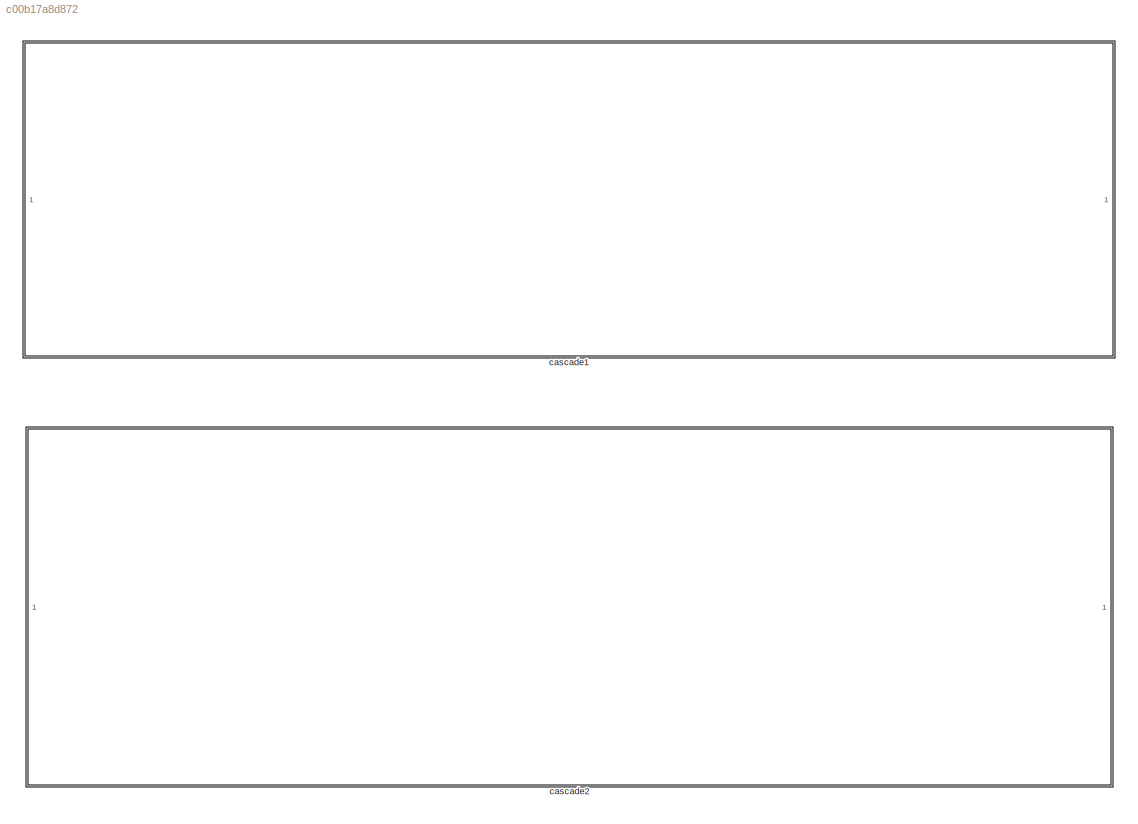
MODEL slx_c00b17a8d872
KIND model
CONFIG AbsTol = auto
CONFIG EnableMultiTasking = off
CONFIG FixedStep = auto
CONFIG MaxStep = auto
CONFIG MinStep = auto
CONFIG RelTol = 1e-3
CONFIG SampleTimeConstraint = Unconstrained
CONFIG SolverName = VariableStepAuto
CONFIG StartTime = 0.0
CONFIG StopTime = 10.0
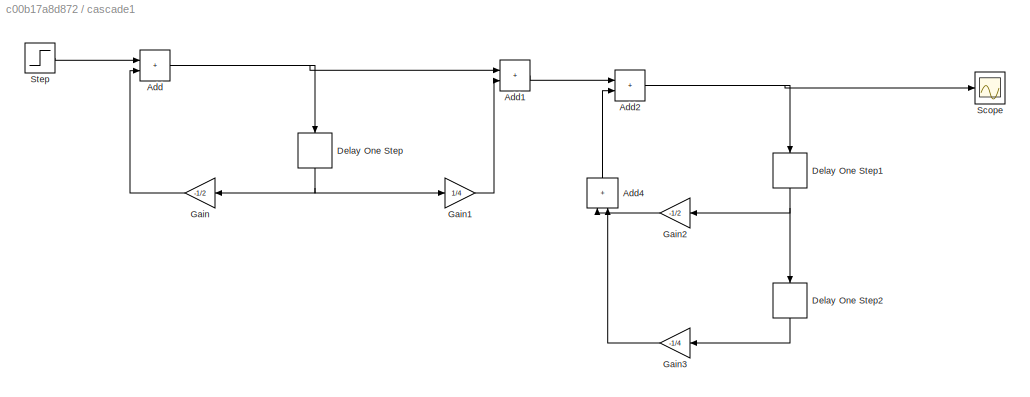
BLOCK [SubSystem] cascade1
BLOCK [Sum] cascade1/Add
  IconShape = rectangular
BLOCK [Sum] cascade1/Add1
  IconShape = rectangular
BLOCK [Sum] cascade1/Add2
  IconShape = rectangular
BLOCK [Sum] cascade1/Add4
  IconShape = rectangular
  NameLocation = right
BLOCK [Delay] cascade1/Delay One Step
  DelayLength = 1
  InputPortMap = u0
  NameLocation = left
BLOCK [Delay] cascade1/Delay One Step1
  DelayLength = 1
  InputPortMap = u0
  NameLocation = left
BLOCK [Delay] cascade1/Delay One Step2
  DelayLength = 1
  InputPortMap = u0
  NameLocation = left
BLOCK [Gain] cascade1/Gain
  Gain = -1/2
  NameLocation = top
BLOCK [Gain] cascade1/Gain1
  Gain = 1/4
BLOCK [Gain] cascade1/Gain2
  Gain = -1/2
  NameLocation = top
BLOCK [Gain] cascade1/Gain3
  Gain = -1/4
  NameLocation = top
BLOCK [Scope] cascade1/Scope
  Floating = off
  NumInputPorts = 1
  ScopeSpecificationString = Simulink.scopes.TimeScopeBlockCfg('CurrentConfiguration', extmgr.ConfigurationSet(extmgr.Configuration('Core','General UI',true),extmgr.Configuration('Core','Source UI',true),extmgr.Configuration('Sources','WiredSimulink',true),extmgr.Configuration('Visuals','Time Domain',true,'SerializedDisplays',{struct('MinYLimReal','-0.125','MaxYLimReal','1.125','YLabelReal','','MinYLimMag','0.00000','MaxYLimM...<+1401ch>
BLOCK [Step] cascade1/Step
  SampleTime = 0
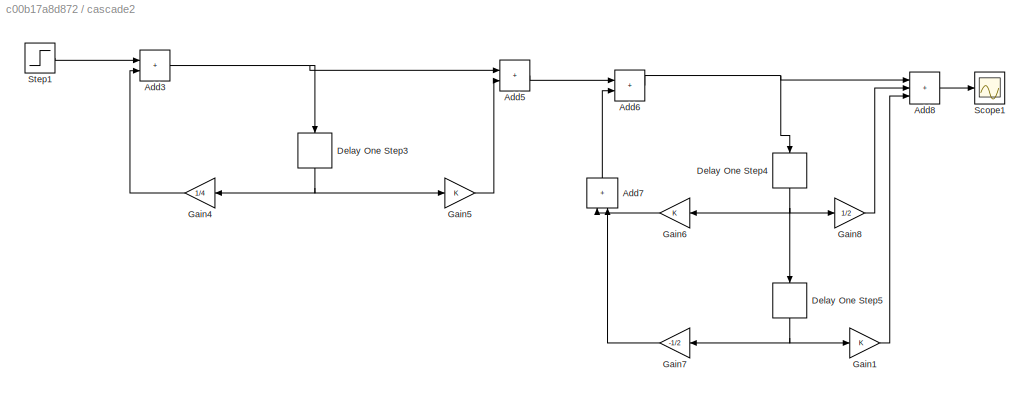
BLOCK [SubSystem] cascade2
BLOCK [Sum] cascade2/Add3
  IconShape = rectangular
BLOCK [Sum] cascade2/Add5
  IconShape = rectangular
BLOCK [Sum] cascade2/Add6
  IconShape = rectangular
BLOCK [Sum] cascade2/Add7
  IconShape = rectangular
  NameLocation = right
BLOCK [Sum] cascade2/Add8
  IconShape = rectangular
  Inputs = +++
BLOCK [Delay] cascade2/Delay One Step3
  DelayLength = 1
  InputPortMap = u0
  NameLocation = left
BLOCK [Delay] cascade2/Delay One Step4
  DelayLength = 1
  InputPortMap = u0
  NameLocation = left
BLOCK [Delay] cascade2/Delay One Step5
  DelayLength = 1
  InputPortMap = u0
  NameLocation = left
BLOCK [Gain] cascade2/Gain1
BLOCK [Gain] cascade2/Gain4
  Gain = 1/4
  NameLocation = top
BLOCK [Gain] cascade2/Gain5
BLOCK [Gain] cascade2/Gain6
  NameLocation = top
BLOCK [Gain] cascade2/Gain7
  Gain = -1/2
  NameLocation = top
BLOCK [Gain] cascade2/Gain8
  Gain = 1/2
BLOCK [Scope] cascade2/Scope1
  Floating = off
  NumInputPorts = 1
  ScopeSpecificationString = Simulink.scopes.TimeScopeBlockCfg('CurrentConfiguration', extmgr.ConfigurationSet(extmgr.Configuration('Core','General UI',true),extmgr.Configuration('Core','Source UI',true),extmgr.Configuration('Sources','WiredSimulink',true,'DataLoggingVariableName','ScopeData1'),extmgr.Configuration('Visuals','Time Domain',true,'SerializedDisplays',{struct('MinYLimReal','-1.91589','MaxYLimReal','17.24304','YLa...<+1456ch>
BLOCK [Step] cascade2/Step1
  SampleTime = 0
LINE cascade1/Add1:1 -> cascade1/Add2:1
NET cascade1/Add2:1 -> cascade1/Delay One Step1:1, cascade1/Scope:1
LINE cascade1/Add4:1 -> cascade1/Add2:2
NET cascade1/Add:1 -> cascade1/Add1:1, cascade1/Delay One Step:1
NET cascade1/Delay One Step1:1 -> cascade1/Delay One Step2:1, cascade1/Gain2:1
LINE cascade1/Delay One Step2:1 -> cascade1/Gain3:1
NET cascade1/Delay One Step:1 -> cascade1/Gain1:1, cascade1/Gain:1
LINE cascade1/Gain1:1 -> cascade1/Add1:2
LINE cascade1/Gain2:1 -> cascade1/Add4:1
LINE cascade1/Gain3:1 -> cascade1/Add4:2
LINE cascade1/Gain:1 -> cascade1/Add:2
LINE cascade1/Step:1 -> cascade1/Add:1
NET cascade2/Add3:1 -> cascade2/Add5:1, cascade2/Delay One Step3:1
LINE cascade2/Add5:1 -> cascade2/Add6:1
NET cascade2/Add6:1 -> cascade2/Add8:1, cascade2/Delay One Step4:1
LINE cascade2/Add7:1 -> cascade2/Add6:2
LINE cascade2/Add8:1 -> cascade2/Scope1:1
NET cascade2/Delay One Step3:1 -> cascade2/Gain4:1, cascade2/Gain5:1
NET cascade2/Delay One Step4:1 -> cascade2/Delay One Step5:1, cascade2/Gain6:1, cascade2/Gain8:1
NET cascade2/Delay One Step5:1 -> cascade2/Gain1:1, cascade2/Gain7:1
LINE cascade2/Gain1:1 -> cascade2/Add8:3
LINE cascade2/Gain4:1 -> cascade2/Add3:2
LINE cascade2/Gain5:1 -> cascade2/Add5:2
LINE cascade2/Gain6:1 -> cascade2/Add7:1
LINE cascade2/Gain7:1 -> cascade2/Add7:2
LINE cascade2/Gain8:1 -> cascade2/Add8:2
LINE cascade2/Step1:1 -> cascade2/Add3:1
note: NET lines group one-source signal fan-out (src -> all destinations, sorted); 1:1 wires keep LINE
